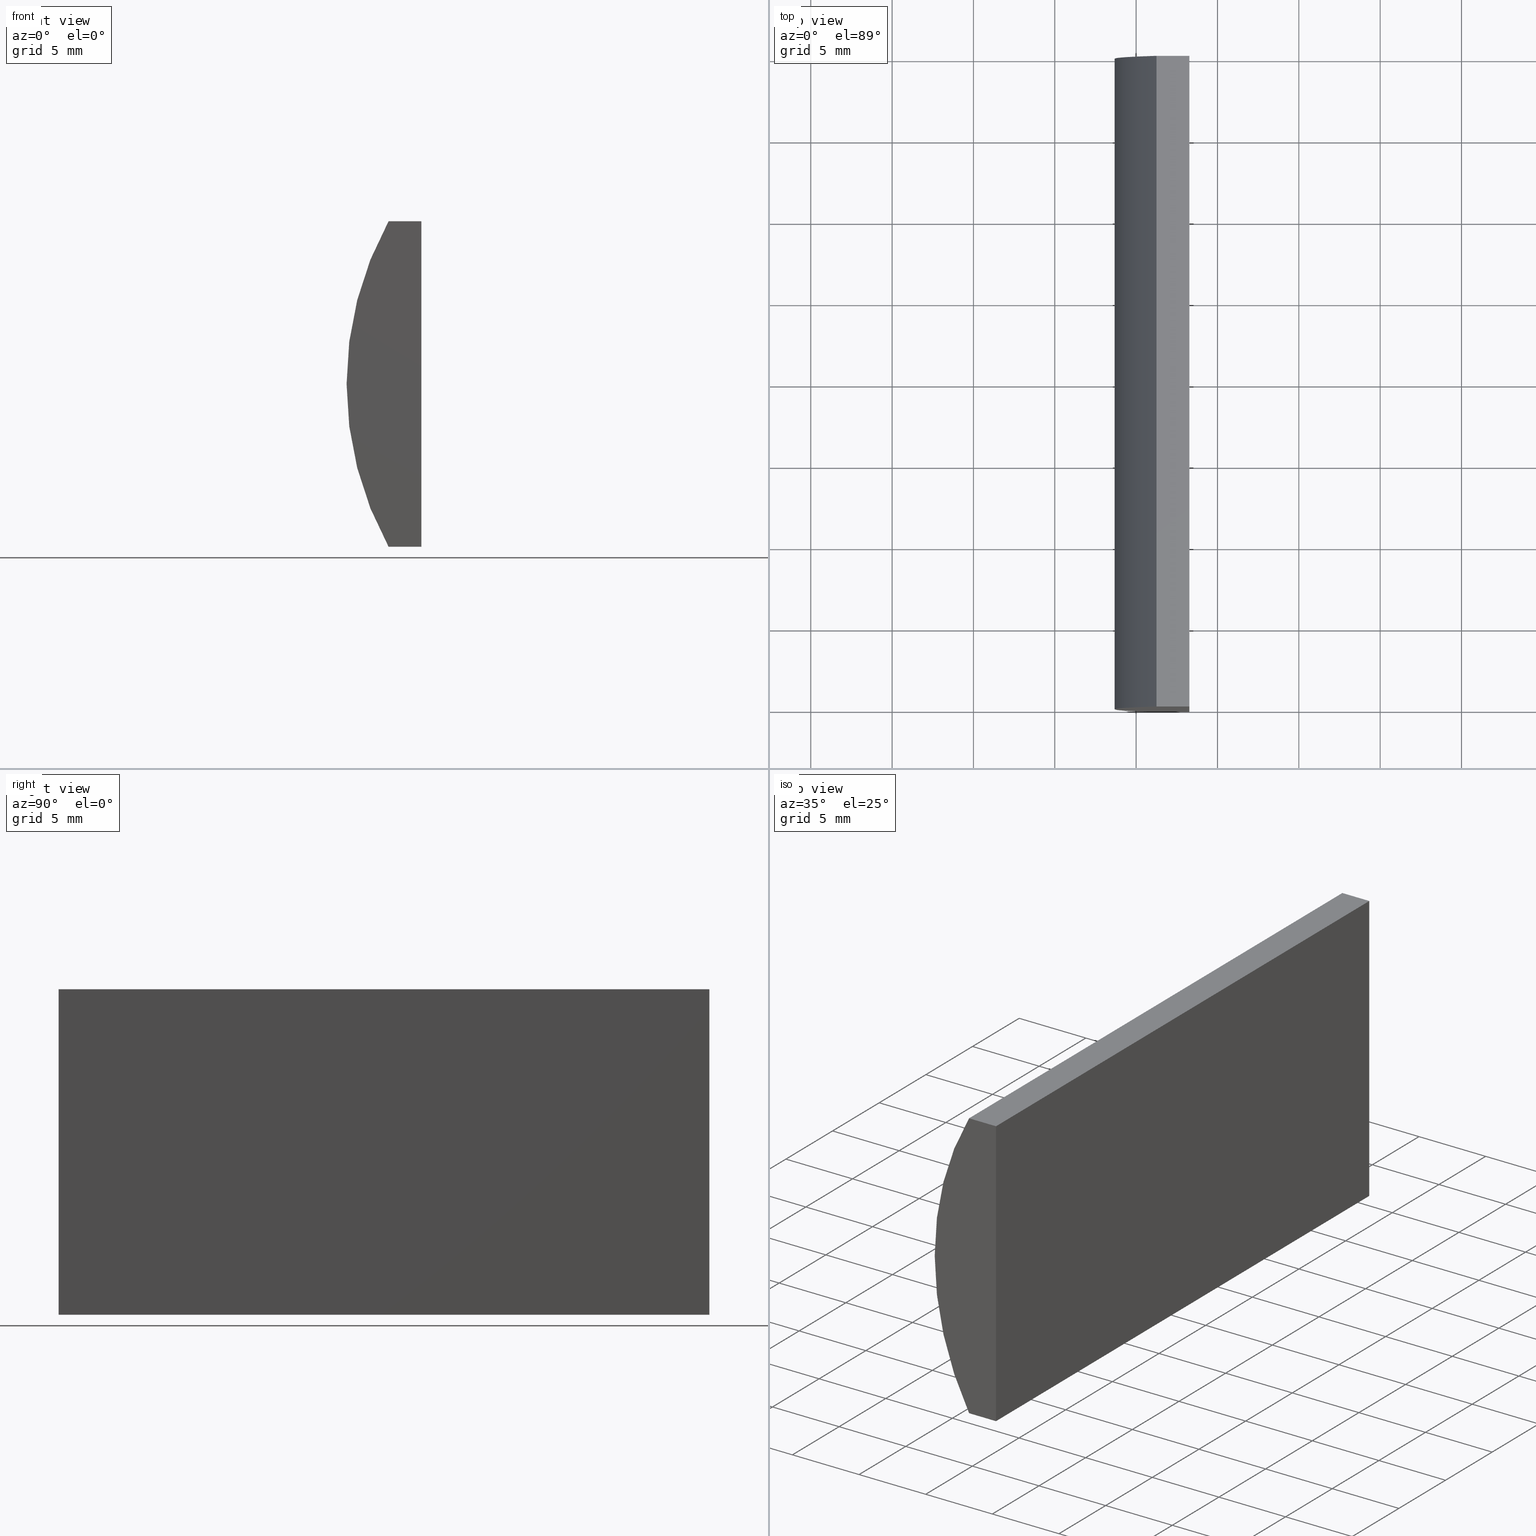
[diagram: canonical four-view strip — front | top / right | iso, engineering-drawing reading convention]
A machine part, canonical four-view strip (front | top / right | iso — engineering-drawing reading convention). The complete STEP part file that produces these views, byte-faithful:
ISO-10303-21;
HEADER;
FILE_DESCRIPTION (( 'STEP AP214' ),
    '1' );
FILE_NAME ('155046.STEP',
    '2019-06-18T03:38:42',
    ( 'user' ),
    ( '΢���й�' ),
    'SwSTEP 2.0',
    'SolidWorks 2016',
    '' );
FILE_SCHEMA (( 'AUTOMOTIVE_DESIGN' ));
ENDSEC;

DATA;
#1 = EDGE_CURVE ( 'NONE', #94, #80, #67, .T. ) ;
#2 = ORIENTED_EDGE ( 'NONE', *, *, #20, .T. ) ;
#3 = DIRECTION ( 'NONE',  ( -1.716318147061464100E-015, 0.0000000000000000000, 1.000000000000000000 ) ) ;
#4 = SURFACE_SIDE_STYLE ('',( #146 ) ) ;
#5 = DIRECTION ( 'NONE',  ( -3.469446951953614700E-016, -0.0000000000000000000, -1.000000000000000000 ) ) ;
#6 = ORIENTED_EDGE ( 'NONE', *, *, #53, .T. ) ;
#7 = EDGE_LOOP ( 'NONE', ( #130, #66, #49, #11 ) ) ;
#8 = ADVANCED_FACE ( 'NONE', ( #180 ), #115, .F. ) ;
#9 = DIRECTION ( 'NONE',  ( 1.000000000000000000, 0.0000000000000000000, 0.0000000000000000000 ) ) ;
#10 = VECTOR ( 'NONE', #107, 1000.000000000000000 ) ;
#11 = ORIENTED_EDGE ( 'NONE', *, *, #20, .F. ) ;
#12 = AXIS2_PLACEMENT_3D ( 'NONE', #81, #200, #201 ) ;
#13 = FILL_AREA_STYLE ('',( #38 ) ) ;
#14 = CARTESIAN_POINT ( 'NONE',  ( -11.72479566514873800, 0.0000000000000000000, -9.999999999999996400 ) ) ;
#15 = VERTEX_POINT ( 'NONE', #150 ) ;
#16 = EDGE_LOOP ( 'NONE', ( #133, #185, #78, #203 ) ) ;
#17 = PRODUCT_DEFINITION_CONTEXT ( 'detailed design', #103, 'design' ) ;
#18 = CARTESIAN_POINT ( 'NONE',  ( -11.72479566514873100, 40.00000000000000000, 10.00000000000000000 ) ) ;
#19 = EDGE_CURVE ( 'NONE', #135, #101, #193, .T. ) ;
#20 = EDGE_CURVE ( 'NONE', #101, #117, #181, .T. ) ;
#21 = FACE_OUTER_BOUND ( 'NONE', #204, .T. ) ;
#22 = LINE ( 'NONE', #23, #131 ) ;
#23 = CARTESIAN_POINT ( 'NONE',  ( -13.74624312108440400, 40.00000000000000000, 10.00000000000000000 ) ) ;
#24 = CARTESIAN_POINT ( 'NONE',  ( 0.0000000000000000000, 0.0000000000000000000, 0.0000000000000000000 ) ) ;
#25 = PRODUCT_DEFINITION_SHAPE ( 'NONE', 'NONE',  #172 ) ;
#26 = ORIENTED_EDGE ( 'NONE', *, *, #41, .T. ) ;
#27 = DIRECTION ( 'NONE',  ( 0.0000000000000000000, -0.0000000000000000000, 1.000000000000000000 ) ) ;
#28 = DIRECTION ( 'NONE',  ( 0.0000000000000000000, -0.0000000000000000000, 1.000000000000000000 ) ) ;
#29 = UNCERTAINTY_MEASURE_WITH_UNIT (LENGTH_MEASURE( 1.000000000000000100E-005 ), #91, 'distance_accuracy_value', 'NONE');
#30 = VERTEX_POINT ( 'NONE', #156 ) ;
#31 = ADVANCED_FACE ( 'NONE', ( #47 ), #179, .F. ) ;
#32 = CARTESIAN_POINT ( 'NONE',  ( -13.74624312108440400, 40.00000000000000000, 10.00000000000000000 ) ) ;
#33 = DIRECTION ( 'NONE',  ( -1.000000000000000000, 0.0000000000000000000, -0.0000000000000000000 ) ) ;
#34 = ORIENTED_EDGE ( 'NONE', *, *, #19, .T. ) ;
#35 = DIRECTION ( 'NONE',  ( 0.0000000000000000000, 0.0000000000000000000, 1.000000000000000000 ) ) ;
#36 =( NAMED_UNIT ( * ) SI_UNIT ( $, .STERADIAN. ) SOLID_ANGLE_UNIT ( ) );
#37 = APPLICATION_PROTOCOL_DEFINITION ( 'draft international standard', 'automotive_design', 1998, #103 ) ;
#38 = FILL_AREA_STYLE_COLOUR ( '', #141 ) ;
#39 = LINE ( 'NONE', #188, #109 ) ;
#40 = VECTOR ( 'NONE', #5, 1000.000000000000000 ) ;
#41 = EDGE_CURVE ( 'NONE', #15, #94, #187, .T. ) ;
#42 = SURFACE_STYLE_FILL_AREA ( #108 ) ;
#43 = AXIS2_PLACEMENT_3D ( 'NONE', #102, #75, #35 ) ;
#44 = APPLICATION_PROTOCOL_DEFINITION ( 'draft international standard', 'automotive_design', 1998, #195 ) ;
#45 = ORIENTED_EDGE ( 'NONE', *, *, #79, .F. ) ;
#46 = EDGE_CURVE ( 'NONE', #80, #30, #22, .T. ) ;
#47 = FACE_OUTER_BOUND ( 'NONE', #88, .T. ) ;
#48 = EDGE_CURVE ( 'NONE', #80, #101, #69, .T. ) ;
#49 = ORIENTED_EDGE ( 'NONE', *, *, #85, .F. ) ;
#50 = STYLED_ITEM ( 'NONE', ( #154 ), #149 ) ;
#51 = FACE_OUTER_BOUND ( 'NONE', #16, .T. ) ;
#52 = VECTOR ( 'NONE', #92, 1000.000000000000000 ) ;
#53 = EDGE_CURVE ( 'NONE', #30, #117, #143, .T. ) ;
#54 = DIRECTION ( 'NONE',  ( 0.0000000000000000000, 0.0000000000000000000, -1.000000000000000000 ) ) ;
#55 = CARTESIAN_POINT ( 'NONE',  ( -13.74624312108440400, 40.00000000000000000, -10.00000000000000000 ) ) ;
#56 = DIRECTION ( 'NONE',  ( 1.000000000000000000, 0.0000000000000000000, 1.716318147061464100E-015 ) ) ;
#57 = DIRECTION ( 'NONE',  ( 3.469446951953615200E-016, 0.0000000000000000000, 1.000000000000000000 ) ) ;
#58 = CARTESIAN_POINT ( 'NONE',  ( -13.74624312108440400, 40.00000000000000000, 10.00000000000000000 ) ) ;
#59 = PLANE ( 'NONE',  #62 ) ;
#60 = ORIENTED_EDGE ( 'NONE', *, *, #53, .F. ) ;
#61 = FACE_OUTER_BOUND ( 'NONE', #76, .T. ) ;
#62 = AXIS2_PLACEMENT_3D ( 'NONE', #82, #136, #28 ) ;
#63 = ORIENTED_EDGE ( 'NONE', *, *, #46, .F. ) ;
#64 =( LENGTH_UNIT ( ) NAMED_UNIT ( * ) SI_UNIT ( .MILLI., .METRE. ) );
#65 = PRESENTATION_LAYER_ASSIGNMENT (  '', '', ( #199 ) ) ;
#66 = ORIENTED_EDGE ( 'NONE', *, *, #192, .F. ) ;
#67 = CIRCLE ( 'NONE', #43, 20.68000000000000000 ) ;
#68 = LINE ( 'NONE', #98, #40 ) ;
#69 = LINE ( 'NONE', #32, #202 ) ;
#70 = DIRECTION ( 'NONE',  ( 0.0000000000000000000, 0.0000000000000000000, 1.000000000000000000 ) ) ;
#71 = LINE ( 'NONE', #124, #52 ) ;
#72 = DIRECTION ( 'NONE',  ( -1.000000000000000000, -0.0000000000000000000, -1.716318147061464100E-015 ) ) ;
#73 = CARTESIAN_POINT ( 'NONE',  ( -13.74624312108440400, 0.0000000000000000000, -10.00000000000000000 ) ) ;
#74 = VECTOR ( 'NONE', #72, 1000.000000000000000 ) ;
#75 = DIRECTION ( 'NONE',  ( 0.0000000000000000000, 1.000000000000000000, 0.0000000000000000000 ) ) ;
#76 = EDGE_LOOP ( 'NONE', ( #168, #106, #190, #26 ) ) ;
#77 = ADVANCED_FACE ( 'NONE', ( #21 ), #140, .T. ) ;
#78 = ORIENTED_EDGE ( 'NONE', *, *, #41, .F. ) ;
#79 = EDGE_CURVE ( 'NONE', #30, #15, #68, .T. ) ;
#80 = VERTEX_POINT ( 'NONE', #58 ) ;
#81 = CARTESIAN_POINT ( 'NONE',  ( 4.355204334851265500, 0.0000000000000000000, 4.286263797015675000E-017 ) ) ;
#82 = CARTESIAN_POINT ( 'NONE',  ( 4.355204334851265500, 40.00000000000000000, 4.286263797015675000E-017 ) ) ;
#83 = FACE_OUTER_BOUND ( 'NONE', #7, .T. ) ;
#84 = DIRECTION ( 'NONE',  ( 0.0000000000000000000, 1.000000000000000000, 0.0000000000000000000 ) ) ;
#85 = EDGE_CURVE ( 'NONE', #117, #105, #71, .T. ) ;
#86 = AXIS2_PLACEMENT_3D ( 'NONE', #177, #54, #33 ) ;
#87 = VECTOR ( 'NONE', #176, 1000.000000000000000 ) ;
#88 = EDGE_LOOP ( 'NONE', ( #100, #113, #45, #6 ) ) ;
#89 = LINE ( 'NONE', #128, #74 ) ;
#90 = ORIENTED_EDGE ( 'NONE', *, *, #48, .F. ) ;
#91 =( LENGTH_UNIT ( ) NAMED_UNIT ( * ) SI_UNIT ( .MILLI., .METRE. ) );
#92 = DIRECTION ( 'NONE',  ( -3.469446951953614700E-016, -0.0000000000000000000, -1.000000000000000000 ) ) ;
#93 = SHAPE_DEFINITION_REPRESENTATION ( #25, #149 ) ;
#94 = VERTEX_POINT ( 'NONE', #114 ) ;
#95 = DIRECTION ( 'NONE',  ( -0.0000000000000000000, -1.000000000000000000, -0.0000000000000000000 ) ) ;
#96 = CARTESIAN_POINT ( 'NONE',  ( 4.355204334851265500, 40.00000000000000000, 4.286263797015675000E-017 ) ) ;
#97 = SURFACE_STYLE_USAGE ( .BOTH. , #164 ) ;
#98 = CARTESIAN_POINT ( 'NONE',  ( -11.72479566514873800, 40.00000000000000000, -9.999999999999996400 ) ) ;
#99 = DIRECTION ( 'NONE',  ( 1.000000000000000000, 0.0000000000000000000, 0.0000000000000000000 ) ) ;
#100 = ORIENTED_EDGE ( 'NONE', *, *, #85, .T. ) ;
#101 = VERTEX_POINT ( 'NONE', #173 ) ;
#102 = CARTESIAN_POINT ( 'NONE',  ( 4.355204334851265500, 40.00000000000000000, 4.286263797015675000E-017 ) ) ;
#103 = APPLICATION_CONTEXT ( 'automotive_design' ) ;
#104 = PLANE ( 'NONE',  #196 ) ;
#105 = VERTEX_POINT ( 'NONE', #14 ) ;
#106 = ORIENTED_EDGE ( 'NONE', *, *, #46, .T. ) ;
#107 = DIRECTION ( 'NONE',  ( -1.000000000000000000, -0.0000000000000000000, -1.716318147061464100E-015 ) ) ;
#108 = FILL_AREA_STYLE ('',( #116 ) ) ;
#109 = VECTOR ( 'NONE', #95, 1000.000000000000000 ) ;
#110 =( GEOMETRIC_REPRESENTATION_CONTEXT ( 3 ) GLOBAL_UNCERTAINTY_ASSIGNED_CONTEXT ( ( #29 ) ) GLOBAL_UNIT_ASSIGNED_CONTEXT ( ( #91, #125, #126 ) ) REPRESENTATION_CONTEXT ( 'NONE', 'WORKASPACE' ) );
#111 = ORIENTED_EDGE ( 'NONE', *, *, #1, .F. ) ;
#112 = MANIFOLD_SOLID_BREP ( '͹̨-����1', #198 ) ;
#113 = ORIENTED_EDGE ( 'NONE', *, *, #119, .F. ) ;
#114 = CARTESIAN_POINT ( 'NONE',  ( -13.74624312108440400, 40.00000000000000000, -10.00000000000000000 ) ) ;
#115 = PLANE ( 'NONE',  #86 ) ;
#116 = FILL_AREA_STYLE_COLOUR ( '', #163 ) ;
#117 = VERTEX_POINT ( 'NONE', #134 ) ;
#118 =( NAMED_UNIT ( * ) SI_UNIT ( $, .STERADIAN. ) SOLID_ANGLE_UNIT ( ) );
#119 = EDGE_CURVE ( 'NONE', #15, #105, #39, .T. ) ;
#120 = DIRECTION ( 'NONE',  ( 0.0000000000000000000, 0.0000000000000000000, -1.000000000000000000 ) ) ;
#121 = ORIENTED_EDGE ( 'NONE', *, *, #159, .T. ) ;
#122 =( GEOMETRIC_REPRESENTATION_CONTEXT ( 3 ) GLOBAL_UNCERTAINTY_ASSIGNED_CONTEXT ( ( #138 ) ) GLOBAL_UNIT_ASSIGNED_CONTEXT ( ( #142, #144, #36 ) ) REPRESENTATION_CONTEXT ( 'NONE', 'WORKASPACE' ) );
#123 = MECHANICAL_DESIGN_GEOMETRIC_PRESENTATION_REPRESENTATION (  '', ( #199 ), #170 ) ;
#124 = CARTESIAN_POINT ( 'NONE',  ( -11.72479566514873800, 0.0000000000000000000, -9.999999999999996400 ) ) ;
#125 =( NAMED_UNIT ( * ) PLANE_ANGLE_UNIT ( ) SI_UNIT ( $, .RADIAN. ) );
#126 =( NAMED_UNIT ( * ) SI_UNIT ( $, .STERADIAN. ) SOLID_ANGLE_UNIT ( ) );
#127 =( NAMED_UNIT ( * ) PLANE_ANGLE_UNIT ( ) SI_UNIT ( $, .RADIAN. ) );
#128 = CARTESIAN_POINT ( 'NONE',  ( -13.74624312108440400, 0.0000000000000000000, -10.00000000000000000 ) ) ;
#129 = CARTESIAN_POINT ( 'NONE',  ( -11.72479566514873800, 40.00000000000000000, -9.999999999999996400 ) ) ;
#130 = ORIENTED_EDGE ( 'NONE', *, *, #19, .F. ) ;
#131 = VECTOR ( 'NONE', #9, 1000.000000000000000 ) ;
#132 = DIRECTION ( 'NONE',  ( -0.0000000000000000000, -1.000000000000000000, -0.0000000000000000000 ) ) ;
#133 = ORIENTED_EDGE ( 'NONE', *, *, #192, .T. ) ;
#134 = CARTESIAN_POINT ( 'NONE',  ( -11.72479566514873100, 0.0000000000000000000, 10.00000000000000000 ) ) ;
#135 = VERTEX_POINT ( 'NONE', #73 ) ;
#136 = DIRECTION ( 'NONE',  ( 0.0000000000000000000, 1.000000000000000000, 0.0000000000000000000 ) ) ;
#137 = CARTESIAN_POINT ( 'NONE',  ( -13.74624312108440400, 40.00000000000000000, -10.00000000000000000 ) ) ;
#138 = UNCERTAINTY_MEASURE_WITH_UNIT (LENGTH_MEASURE( 1.000000000000000100E-005 ), #142, 'distance_accuracy_value', 'NONE');
#139 = CARTESIAN_POINT ( 'NONE',  ( 4.355204334851265500, 0.0000000000000000000, 4.286263797015675000E-017 ) ) ;
#140 = CYLINDRICAL_SURFACE ( 'NONE', #160, 20.68000000000000000 ) ;
#141 = COLOUR_RGB ( '',1.000000000000000000, 1.000000000000000000, 1.000000000000000000 ) ;
#142 =( LENGTH_UNIT ( ) NAMED_UNIT ( * ) SI_UNIT ( .MILLI., .METRE. ) );
#143 = LINE ( 'NONE', #18, #147 ) ;
#144 =( NAMED_UNIT ( * ) PLANE_ANGLE_UNIT ( ) SI_UNIT ( $, .RADIAN. ) );
#145 = SURFACE_STYLE_USAGE ( .BOTH. , #4 ) ;
#146 = SURFACE_STYLE_FILL_AREA ( #13 ) ;
#147 = VECTOR ( 'NONE', #197, 1000.000000000000000 ) ;
#148 = DIRECTION ( 'NONE',  ( -1.000000000000000000, 0.0000000000000000000, 3.469446951953615200E-016 ) ) ;
#149 = ADVANCED_BREP_SHAPE_REPRESENTATION ( '155046', ( #112, #158 ), #110 ) ;
#150 = CARTESIAN_POINT ( 'NONE',  ( -11.72479566514873800, 40.00000000000000000, -9.999999999999996400 ) ) ;
#151 = MECHANICAL_DESIGN_GEOMETRIC_PRESENTATION_REPRESENTATION (  '', ( #50 ), #122 ) ;
#152 = CARTESIAN_POINT ( 'NONE',  ( -13.74624312108440400, 40.00000000000000000, -10.00000000000000000 ) ) ;
#153 = EDGE_LOOP ( 'NONE', ( #2, #60, #63, #155 ) ) ;
#154 = PRESENTATION_STYLE_ASSIGNMENT (( #145 ) ) ;
#155 = ORIENTED_EDGE ( 'NONE', *, *, #48, .T. ) ;
#156 = CARTESIAN_POINT ( 'NONE',  ( -11.72479566514873100, 40.00000000000000000, 10.00000000000000000 ) ) ;
#157 = LINE ( 'NONE', #137, #87 ) ;
#158 = AXIS2_PLACEMENT_3D ( 'NONE', #24, #70, #174 ) ;
#159 = EDGE_CURVE ( 'NONE', #94, #135, #157, .T. ) ;
#160 = AXIS2_PLACEMENT_3D ( 'NONE', #96, #175, #120 ) ;
#161 = VECTOR ( 'NONE', #99, 1000.000000000000000 ) ;
#162 = PRODUCT ( '155046', '155046', '', ( #186 ) ) ;
#163 = COLOUR_RGB ( '',1.000000000000000000, 1.000000000000000000, 1.000000000000000000 ) ;
#164 = SURFACE_SIDE_STYLE ('',( #42 ) ) ;
#165 = PRESENTATION_LAYER_ASSIGNMENT (  '', '', ( #50 ) ) ;
#166 = AXIS2_PLACEMENT_3D ( 'NONE', #55, #3, #56 ) ;
#167 = PRESENTATION_STYLE_ASSIGNMENT (( #97 ) ) ;
#168 = ORIENTED_EDGE ( 'NONE', *, *, #1, .T. ) ;
#169 = PLANE ( 'NONE',  #166 ) ;
#170 =( GEOMETRIC_REPRESENTATION_CONTEXT ( 3 ) GLOBAL_UNCERTAINTY_ASSIGNED_CONTEXT ( ( #184 ) ) GLOBAL_UNIT_ASSIGNED_CONTEXT ( ( #64, #127, #118 ) ) REPRESENTATION_CONTEXT ( 'NONE', 'WORKASPACE' ) );
#171 = ADVANCED_FACE ( 'NONE', ( #83 ), #104, .F. ) ;
#172 = PRODUCT_DEFINITION ( 'δ֪', '', #178, #17 ) ;
#173 = CARTESIAN_POINT ( 'NONE',  ( -13.74624312108440400, 0.0000000000000000000, 10.00000000000000000 ) ) ;
#174 = DIRECTION ( 'NONE',  ( 1.000000000000000000, 0.0000000000000000000, 0.0000000000000000000 ) ) ;
#175 = DIRECTION ( 'NONE',  ( -0.0000000000000000000, -1.000000000000000000, -0.0000000000000000000 ) ) ;
#176 = DIRECTION ( 'NONE',  ( -0.0000000000000000000, -1.000000000000000000, -0.0000000000000000000 ) ) ;
#177 = CARTESIAN_POINT ( 'NONE',  ( -13.74624312108440400, 40.00000000000000000, 10.00000000000000000 ) ) ;
#178 = PRODUCT_DEFINITION_FORMATION_WITH_SPECIFIED_SOURCE ( '�κ�', '', #162, .NOT_KNOWN. ) ;
#179 = PLANE ( 'NONE',  #182 ) ;
#180 = FACE_OUTER_BOUND ( 'NONE', #153, .T. ) ;
#181 = LINE ( 'NONE', #194, #161 ) ;
#182 = AXIS2_PLACEMENT_3D ( 'NONE', #129, #148, #57 ) ;
#183 = ADVANCED_FACE ( 'NONE', ( #51 ), #169, .F. ) ;
#184 = UNCERTAINTY_MEASURE_WITH_UNIT (LENGTH_MEASURE( 1.000000000000000100E-005 ), #64, 'distance_accuracy_value', 'NONE');
#185 = ORIENTED_EDGE ( 'NONE', *, *, #159, .F. ) ;
#186 = PRODUCT_CONTEXT ( 'NONE', #195, 'mechanical' ) ;
#187 = LINE ( 'NONE', #152, #10 ) ;
#188 = CARTESIAN_POINT ( 'NONE',  ( -11.72479566514873800, 40.00000000000000000, -9.999999999999996400 ) ) ;
#189 = ADVANCED_FACE ( 'NONE', ( #61 ), #59, .T. ) ;
#190 = ORIENTED_EDGE ( 'NONE', *, *, #79, .T. ) ;
#191 = PRODUCT_RELATED_PRODUCT_CATEGORY ( 'part', '', ( #162 ) ) ;
#192 = EDGE_CURVE ( 'NONE', #105, #135, #89, .T. ) ;
#193 = CIRCLE ( 'NONE', #12, 20.68000000000000000 ) ;
#194 = CARTESIAN_POINT ( 'NONE',  ( -13.74624312108440400, 0.0000000000000000000, 10.00000000000000000 ) ) ;
#195 = APPLICATION_CONTEXT ( 'automotive_design' ) ;
#196 = AXIS2_PLACEMENT_3D ( 'NONE', #139, #84, #27 ) ;
#197 = DIRECTION ( 'NONE',  ( -0.0000000000000000000, -1.000000000000000000, -0.0000000000000000000 ) ) ;
#198 = CLOSED_SHELL ( 'NONE', ( #77, #8, #31, #183, #189, #171 ) ) ;
#199 = STYLED_ITEM ( 'NONE', ( #167 ), #112 ) ;
#200 = DIRECTION ( 'NONE',  ( 0.0000000000000000000, 1.000000000000000000, 0.0000000000000000000 ) ) ;
#201 = DIRECTION ( 'NONE',  ( 0.0000000000000000000, 0.0000000000000000000, 1.000000000000000000 ) ) ;
#202 = VECTOR ( 'NONE', #132, 1000.000000000000000 ) ;
#203 = ORIENTED_EDGE ( 'NONE', *, *, #119, .T. ) ;
#204 = EDGE_LOOP ( 'NONE', ( #34, #90, #111, #121 ) ) ;
ENDSEC;
END-ISO-10303-21;
